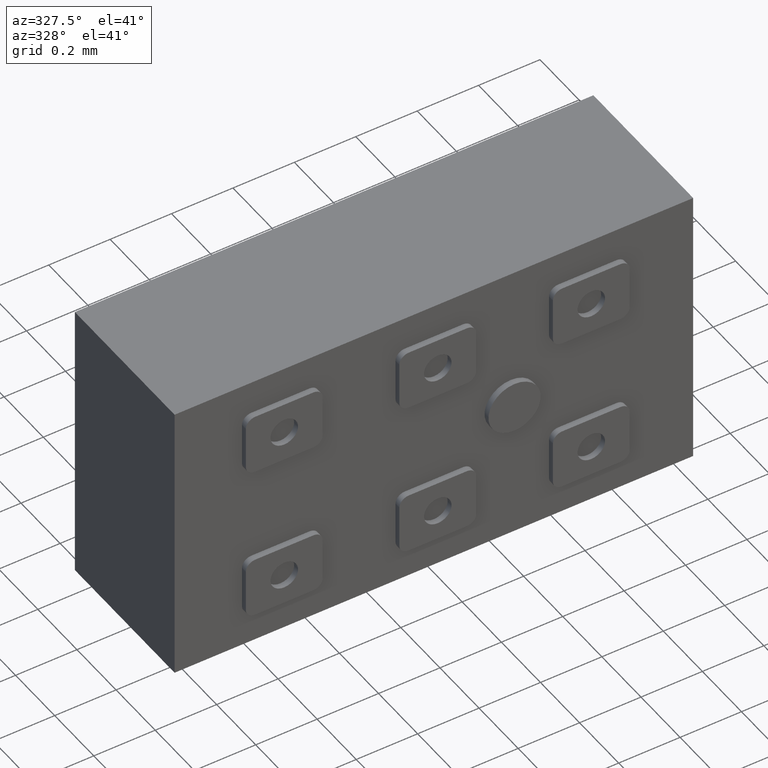
[diagram: clean part render]
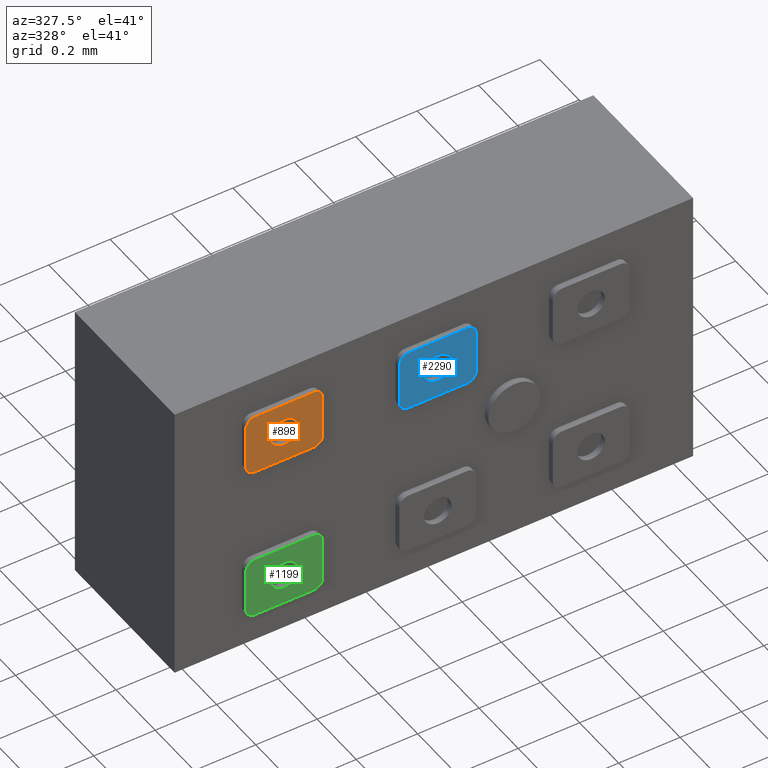
[diagram: same view with three faces highlighted in distinct colors, each labeled with its STEP entity id]
A machine part, auxiliary view with three faces highlighted in distinct colors.
Their STEP definitions:

[orange] entity #898 — the highlighted planar face has unit normal (0, 1, 0).
#12 = CARTESIAN_POINT ( 'NONE',  ( -0.5000000000000000000, -0.2750000000000000222, 0.2150000000000070466 ) ) ;
#91 = EDGE_CURVE ( 'NONE', #816, #2107, #853, .T. ) ;
#155 = CARTESIAN_POINT ( 'NONE',  ( -0.6250000000000000000, -0.2750000000000000222, 0.1900000000000070521 ) ) ;
#188 = AXIS2_PLACEMENT_3D ( 'NONE', #2552, #769, #576 ) ;
#214 = CARTESIAN_POINT ( 'NONE',  ( -0.5950000000000000844, -0.2750000000000000222, 0.1900000000000070521 ) ) ;
#254 = EDGE_CURVE ( 'NONE', #686, #1335, #1899, .T. ) ;
#278 = DIRECTION ( 'NONE',  ( 0.000000000000000000, 0.000000000000000000, 1.000000000000000000 ) ) ;
#379 = PLANE ( 'NONE',  #659 ) ;
#429 = ORIENTED_EDGE ( 'NONE', *, *, #2203, .F. ) ;
#539 = DIRECTION ( 'NONE',  ( -1.000000000000000000, -0.000000000000000000, -0.000000000000000000 ) ) ;
#576 = DIRECTION ( 'NONE',  ( 0.000000000000000000, 0.000000000000000000, 1.000000000000000000 ) ) ;
#603 = CARTESIAN_POINT ( 'NONE',  ( -0.3749999999999999445, -0.2750000000000000222, 0.1900000000000070521 ) ) ;
#605 = CIRCLE ( 'NONE', #188, 0.03000000000000002318 ) ;
#634 = DIRECTION ( 'NONE',  ( 1.000000000000000000, 0.000000000000000000, 0.000000000000000000 ) ) ;
#659 = AXIS2_PLACEMENT_3D ( 'NONE', #214, #1189, #1606 ) ;
#668 = ORIENTED_EDGE ( 'NONE', *, *, #1673, .T. ) ;
#669 = DIRECTION ( 'NONE',  ( 0.000000000000000000, 0.000000000000000000, 1.000000000000000000 ) ) ;
#677 = EDGE_CURVE ( 'NONE', #1134, #2163, #1078, .T. ) ;
#686 = VERTEX_POINT ( 'NONE', #1866 ) ;
#725 = EDGE_LOOP ( 'NONE', ( #970, #2348, #1556, #879, #2561, #429, #758, #1016 ) ) ;
#750 = EDGE_LOOP ( 'NONE', ( #2515, #668 ) ) ;
#758 = ORIENTED_EDGE ( 'NONE', *, *, #2131, .F. ) ;
#769 = DIRECTION ( 'NONE',  ( 0.000000000000000000, 1.000000000000000000, 0.000000000000000000 ) ) ;
#816 = VERTEX_POINT ( 'NONE', #933 ) ;
#822 = AXIS2_PLACEMENT_3D ( 'NONE', #1661, #2035, #1465 ) ;
#824 = LINE ( 'NONE', #1624, #1080 ) ;
#842 = CARTESIAN_POINT ( 'NONE',  ( -0.3749999999999998890, -0.2750000000000000222, 0.1900000000000070521 ) ) ;
#853 = LINE ( 'NONE', #842, #873 ) ;
#873 = VECTOR ( 'NONE', #2082, 1000.000000000000000 ) ;
#879 = ORIENTED_EDGE ( 'NONE', *, *, #91, .F. ) ;
#898 = ADVANCED_FACE ( 'NONE', ( #1983, #2194 ), #379, .F. ) ;
#917 = VERTEX_POINT ( 'NONE', #1794 ) ;
#933 = CARTESIAN_POINT ( 'NONE',  ( -0.3749999999999998890, -0.2750000000000000222, 0.3300000000000071210 ) ) ;
#970 = ORIENTED_EDGE ( 'NONE', *, *, #1496, .F. ) ;
#1016 = ORIENTED_EDGE ( 'NONE', *, *, #677, .F. ) ;
#1018 = DIRECTION ( 'NONE',  ( 0.000000000000000000, 1.000000000000000000, 0.000000000000000000 ) ) ;
#1048 = CARTESIAN_POINT ( 'NONE',  ( -0.5950000000000000844, -0.2750000000000000222, 0.1900000000000070521 ) ) ;
#1067 = CARTESIAN_POINT ( 'NONE',  ( -0.6250000000000000000, -0.2750000000000000222, 0.1900000000000070521 ) ) ;
#1078 = LINE ( 'NONE', #1067, #1746 ) ;
#1080 = VECTOR ( 'NONE', #634, 1000.000000000000000 ) ;
#1134 = VERTEX_POINT ( 'NONE', #155 ) ;
#1148 = AXIS2_PLACEMENT_3D ( 'NONE', #1512, #1782, #2554 ) ;
#1153 = DIRECTION ( 'NONE',  ( 0.000000000000000000, 1.000000000000000000, 0.000000000000000000 ) ) ;
#1189 = DIRECTION ( 'NONE',  ( 0.000000000000000000, 1.000000000000000000, 0.000000000000000000 ) ) ;
#1279 = AXIS2_PLACEMENT_3D ( 'NONE', #1048, #1647, #669 ) ;
#1305 = CARTESIAN_POINT ( 'NONE',  ( -0.5950000000000000844, -0.2750000000000000222, 0.1600000000000070810 ) ) ;
#1335 = VERTEX_POINT ( 'NONE', #1791 ) ;
#1345 = VERTEX_POINT ( 'NONE', #12 ) ;
#1370 = CARTESIAN_POINT ( 'NONE',  ( -0.4049999999999999711, -0.2750000000000000222, 0.3600000000000071476 ) ) ;
#1378 = DIRECTION ( 'NONE',  ( 0.000000000000000000, 0.000000000000000000, 1.000000000000000000 ) ) ;
#1381 = CARTESIAN_POINT ( 'NONE',  ( -0.5000000000000000000, -0.2750000000000000222, 0.2600000000000070033 ) ) ;
#1401 = EDGE_CURVE ( 'NONE', #1646, #816, #2565, .T. ) ;
#1465 = DIRECTION ( 'NONE',  ( 0.000000000000000000, 0.000000000000000000, -1.000000000000000000 ) ) ;
#1496 = EDGE_CURVE ( 'NONE', #1335, #1134, #2275, .T. ) ;
#1512 = CARTESIAN_POINT ( 'NONE',  ( -0.5000000000000000000, -0.2750000000000000222, 0.2600000000000070033 ) ) ;
#1556 = ORIENTED_EDGE ( 'NONE', *, *, #2506, .F. ) ;
#1579 = EDGE_CURVE ( 'NONE', #917, #1345, #1730, .T. ) ;
#1592 = CARTESIAN_POINT ( 'NONE',  ( -0.6250000000000000000, -0.2750000000000000222, 0.3300000000000071210 ) ) ;
#1606 = DIRECTION ( 'NONE',  ( 0.000000000000000000, -0.000000000000000000, 1.000000000000000000 ) ) ;
#1624 = CARTESIAN_POINT ( 'NONE',  ( -0.5950000000000000844, -0.2750000000000000222, 0.3600000000000070921 ) ) ;
#1646 = VERTEX_POINT ( 'NONE', #1370 ) ;
#1647 = DIRECTION ( 'NONE',  ( 0.000000000000000000, 1.000000000000000000, 0.000000000000000000 ) ) ;
#1661 = CARTESIAN_POINT ( 'NONE',  ( -0.4049999999999999711, -0.2750000000000000222, 0.3300000000000071210 ) ) ;
#1673 = EDGE_CURVE ( 'NONE', #1345, #917, #1982, .T. ) ;
#1730 = CIRCLE ( 'NONE', #1148, 0.04500000000000001221 ) ;
#1746 = VECTOR ( 'NONE', #278, 1000.000000000000000 ) ;
#1782 = DIRECTION ( 'NONE',  ( 0.000000000000000000, 1.000000000000000000, 0.000000000000000000 ) ) ;
#1787 = CIRCLE ( 'NONE', #1833, 0.02999999999999997113 ) ;
#1791 = CARTESIAN_POINT ( 'NONE',  ( -0.5950000000000000844, -0.2750000000000000222, 0.1600000000000070810 ) ) ;
#1794 = CARTESIAN_POINT ( 'NONE',  ( -0.5000000000000000000, -0.2750000000000000222, 0.3050000000000070433 ) ) ;
#1833 = AXIS2_PLACEMENT_3D ( 'NONE', #2371, #1018, #1378 ) ;
#1866 = CARTESIAN_POINT ( 'NONE',  ( -0.4049999999999999711, -0.2750000000000000222, 0.1600000000000070810 ) ) ;
#1899 = LINE ( 'NONE', #1305, #2083 ) ;
#1982 = CIRCLE ( 'NONE', #2310, 0.04500000000000001221 ) ;
#1983 = FACE_BOUND ( 'NONE', #750, .T. ) ;
#2035 = DIRECTION ( 'NONE',  ( 0.000000000000000000, 1.000000000000000000, -0.000000000000000000 ) ) ;
#2082 = DIRECTION ( 'NONE',  ( -0.000000000000000000, -0.000000000000000000, -1.000000000000000000 ) ) ;
#2083 = VECTOR ( 'NONE', #539, 1000.000000000000000 ) ;
#2107 = VERTEX_POINT ( 'NONE', #603 ) ;
#2131 = EDGE_CURVE ( 'NONE', #2163, #2204, #1787, .T. ) ;
#2163 = VERTEX_POINT ( 'NONE', #1592 ) ;
#2194 = FACE_OUTER_BOUND ( 'NONE', #725, .T. ) ;
#2203 = EDGE_CURVE ( 'NONE', #2204, #1646, #824, .T. ) ;
#2204 = VERTEX_POINT ( 'NONE', #2429 ) ;
#2275 = CIRCLE ( 'NONE', #1279, 0.02999999999999997113 ) ;
#2310 = AXIS2_PLACEMENT_3D ( 'NONE', #1381, #1153, #2512 ) ;
#2348 = ORIENTED_EDGE ( 'NONE', *, *, #254, .F. ) ;
#2371 = CARTESIAN_POINT ( 'NONE',  ( -0.5950000000000000844, -0.2750000000000000222, 0.3300000000000071210 ) ) ;
#2429 = CARTESIAN_POINT ( 'NONE',  ( -0.5950000000000000844, -0.2750000000000000222, 0.3600000000000070921 ) ) ;
#2506 = EDGE_CURVE ( 'NONE', #2107, #686, #605, .T. ) ;
#2512 = DIRECTION ( 'NONE',  ( 0.000000000000000000, 0.000000000000000000, 1.000000000000000000 ) ) ;
#2515 = ORIENTED_EDGE ( 'NONE', *, *, #1579, .T. ) ;
#2552 = CARTESIAN_POINT ( 'NONE',  ( -0.4049999999999999711, -0.2750000000000000222, 0.1900000000000070521 ) ) ;
#2554 = DIRECTION ( 'NONE',  ( 0.000000000000000000, 0.000000000000000000, 1.000000000000000000 ) ) ;
#2561 = ORIENTED_EDGE ( 'NONE', *, *, #1401, .F. ) ;
#2565 = CIRCLE ( 'NONE', #822, 0.03000000000000002318 ) ;

[blue] entity #2290 — the highlighted planar face has unit normal (0, 1, 0).
#7 = EDGE_LOOP ( 'NONE', ( #1238, #1706 ) ) ;
#81 = VECTOR ( 'NONE', #1778, 1000.000000000000000 ) ;
#114 = AXIS2_PLACEMENT_3D ( 'NONE', #328, #124, #1898 ) ;
#124 = DIRECTION ( 'NONE',  ( 0.000000000000000000, 1.000000000000000000, 0.000000000000000000 ) ) ;
#144 = LINE ( 'NONE', #1752, #2158 ) ;
#172 = DIRECTION ( 'NONE',  ( -0.000000000000000000, -0.000000000000000000, -1.000000000000000000 ) ) ;
#197 = VECTOR ( 'NONE', #1095, 1000.000000000000000 ) ;
#202 = DIRECTION ( 'NONE',  ( 0.000000000000000000, 1.000000000000000000, 0.000000000000000000 ) ) ;
#203 = AXIS2_PLACEMENT_3D ( 'NONE', #288, #1885, #1301 ) ;
#206 = VERTEX_POINT ( 'NONE', #2322 ) ;
#229 = CARTESIAN_POINT ( 'NONE',  ( -0.09500000000000002887, -0.2750000000000000222, 0.1600000000000035560 ) ) ;
#239 = CARTESIAN_POINT ( 'NONE',  ( 0.000000000000000000, -0.2750000000000000222, 0.2600000000000035061 ) ) ;
#244 = ORIENTED_EDGE ( 'NONE', *, *, #1555, .F. ) ;
#248 = CIRCLE ( 'NONE', #1882, 0.02999999999999997113 ) ;
#253 = ORIENTED_EDGE ( 'NONE', *, *, #1085, .F. ) ;
#288 = CARTESIAN_POINT ( 'NONE',  ( 0.000000000000000000, -0.2750000000000000222, 0.2600000000000035061 ) ) ;
#290 = LINE ( 'NONE', #1468, #323 ) ;
#323 = VECTOR ( 'NONE', #172, 1000.000000000000000 ) ;
#328 = CARTESIAN_POINT ( 'NONE',  ( 0.09500000000000002887, -0.2750000000000000222, 0.1900000000000035272 ) ) ;
#336 = VERTEX_POINT ( 'NONE', #1356 ) ;
#393 = CARTESIAN_POINT ( 'NONE',  ( -0.09500000000000002887, -0.2750000000000000222, 0.1900000000000035272 ) ) ;
#436 = CARTESIAN_POINT ( 'NONE',  ( 0.09500000000000002887, -0.2750000000000000222, 0.3300000000000035683 ) ) ;
#449 = EDGE_CURVE ( 'NONE', #1807, #1572, #248, .T. ) ;
#460 = EDGE_CURVE ( 'NONE', #679, #843, #1287, .T. ) ;
#478 = EDGE_CURVE ( 'NONE', #2501, #700, #2457, .T. ) ;
#484 = FACE_BOUND ( 'NONE', #7, .T. ) ;
#504 = ORIENTED_EDGE ( 'NONE', *, *, #478, .F. ) ;
#583 = VERTEX_POINT ( 'NONE', #1292 ) ;
#621 = DIRECTION ( 'NONE',  ( 0.000000000000000000, 0.000000000000000000, 1.000000000000000000 ) ) ;
#642 = ORIENTED_EDGE ( 'NONE', *, *, #687, .F. ) ;
#646 = CARTESIAN_POINT ( 'NONE',  ( -0.09500000000000002887, -0.2750000000000000222, 0.3300000000000035683 ) ) ;
#679 = VERTEX_POINT ( 'NONE', #2078 ) ;
#687 = EDGE_CURVE ( 'NONE', #843, #206, #290, .T. ) ;
#700 = VERTEX_POINT ( 'NONE', #2495 ) ;
#843 = VERTEX_POINT ( 'NONE', #2522 ) ;
#867 = AXIS2_PLACEMENT_3D ( 'NONE', #1280, #2279, #2075 ) ;
#888 = CARTESIAN_POINT ( 'NONE',  ( -0.09500000000000002887, -0.2750000000000000222, 0.1600000000000035560 ) ) ;
#944 = ORIENTED_EDGE ( 'NONE', *, *, #1979, .F. ) ;
#949 = EDGE_CURVE ( 'NONE', #1572, #2501, #2566, .T. ) ;
#996 = DIRECTION ( 'NONE',  ( 0.000000000000000000, 0.000000000000000000, 1.000000000000000000 ) ) ;
#1039 = DIRECTION ( 'NONE',  ( 0.000000000000000000, 1.000000000000000000, 0.000000000000000000 ) ) ;
#1077 = PLANE ( 'NONE',  #867 ) ;
#1085 = EDGE_CURVE ( 'NONE', #336, #1807, #2278, .T. ) ;
#1095 = DIRECTION ( 'NONE',  ( -1.000000000000000000, -0.000000000000000000, -0.000000000000000000 ) ) ;
#1182 = ORIENTED_EDGE ( 'NONE', *, *, #460, .F. ) ;
#1219 = CARTESIAN_POINT ( 'NONE',  ( -0.1250000000000000000, -0.2750000000000000222, 0.1900000000000035272 ) ) ;
#1238 = ORIENTED_EDGE ( 'NONE', *, *, #1764, .T. ) ;
#1240 = CIRCLE ( 'NONE', #114, 0.03000000000000002318 ) ;
#1244 = DIRECTION ( 'NONE',  ( 0.000000000000000000, 1.000000000000000000, -0.000000000000000000 ) ) ;
#1245 = CIRCLE ( 'NONE', #203, 0.04500000000000001221 ) ;
#1268 = FACE_OUTER_BOUND ( 'NONE', #2285, .T. ) ;
#1280 = CARTESIAN_POINT ( 'NONE',  ( -0.09500000000000002887, -0.2750000000000000222, 0.1900000000000035272 ) ) ;
#1287 = CIRCLE ( 'NONE', #1534, 0.03000000000000002318 ) ;
#1292 = CARTESIAN_POINT ( 'NONE',  ( 0.000000000000000000, -0.2750000000000000222, 0.3050000000000034905 ) ) ;
#1301 = DIRECTION ( 'NONE',  ( 0.000000000000000000, 0.000000000000000000, 1.000000000000000000 ) ) ;
#1308 = ORIENTED_EDGE ( 'NONE', *, *, #449, .F. ) ;
#1356 = CARTESIAN_POINT ( 'NONE',  ( 0.09500000000000002887, -0.2750000000000000222, 0.1600000000000035560 ) ) ;
#1468 = CARTESIAN_POINT ( 'NONE',  ( 0.1250000000000001110, -0.2750000000000000222, 0.1900000000000035272 ) ) ;
#1523 = CARTESIAN_POINT ( 'NONE',  ( -0.1250000000000000000, -0.2750000000000000222, 0.3300000000000035683 ) ) ;
#1534 = AXIS2_PLACEMENT_3D ( 'NONE', #436, #1244, #1823 ) ;
#1555 = EDGE_CURVE ( 'NONE', #206, #336, #1240, .T. ) ;
#1572 = VERTEX_POINT ( 'NONE', #1714 ) ;
#1629 = AXIS2_PLACEMENT_3D ( 'NONE', #646, #1039, #621 ) ;
#1656 = AXIS2_PLACEMENT_3D ( 'NONE', #239, #202, #996 ) ;
#1706 = ORIENTED_EDGE ( 'NONE', *, *, #2297, .T. ) ;
#1714 = CARTESIAN_POINT ( 'NONE',  ( -0.1250000000000000000, -0.2750000000000000222, 0.1900000000000035272 ) ) ;
#1752 = CARTESIAN_POINT ( 'NONE',  ( -0.09500000000000002887, -0.2750000000000000222, 0.3600000000000035394 ) ) ;
#1764 = EDGE_CURVE ( 'NONE', #583, #1990, #2397, .T. ) ;
#1778 = DIRECTION ( 'NONE',  ( 0.000000000000000000, 0.000000000000000000, 1.000000000000000000 ) ) ;
#1807 = VERTEX_POINT ( 'NONE', #229 ) ;
#1814 = ORIENTED_EDGE ( 'NONE', *, *, #949, .F. ) ;
#1823 = DIRECTION ( 'NONE',  ( 0.000000000000000000, 0.000000000000000000, -1.000000000000000000 ) ) ;
#1882 = AXIS2_PLACEMENT_3D ( 'NONE', #393, #2003, #2225 ) ;
#1885 = DIRECTION ( 'NONE',  ( 0.000000000000000000, 1.000000000000000000, 0.000000000000000000 ) ) ;
#1898 = DIRECTION ( 'NONE',  ( 0.000000000000000000, 0.000000000000000000, 1.000000000000000000 ) ) ;
#1979 = EDGE_CURVE ( 'NONE', #700, #679, #144, .T. ) ;
#1990 = VERTEX_POINT ( 'NONE', #2170 ) ;
#2003 = DIRECTION ( 'NONE',  ( 0.000000000000000000, 1.000000000000000000, 0.000000000000000000 ) ) ;
#2075 = DIRECTION ( 'NONE',  ( 0.000000000000000000, -0.000000000000000000, 1.000000000000000000 ) ) ;
#2078 = CARTESIAN_POINT ( 'NONE',  ( 0.09500000000000002887, -0.2750000000000000222, 0.3600000000000035949 ) ) ;
#2128 = DIRECTION ( 'NONE',  ( 1.000000000000000000, 0.000000000000000000, 0.000000000000000000 ) ) ;
#2158 = VECTOR ( 'NONE', #2128, 1000.000000000000000 ) ;
#2170 = CARTESIAN_POINT ( 'NONE',  ( 5.510910596163088785E-18, -0.2750000000000000222, 0.2150000000000035216 ) ) ;
#2225 = DIRECTION ( 'NONE',  ( 0.000000000000000000, 0.000000000000000000, 1.000000000000000000 ) ) ;
#2278 = LINE ( 'NONE', #888, #197 ) ;
#2279 = DIRECTION ( 'NONE',  ( 0.000000000000000000, 1.000000000000000000, 0.000000000000000000 ) ) ;
#2285 = EDGE_LOOP ( 'NONE', ( #1308, #253, #244, #642, #1182, #944, #504, #1814 ) ) ;
#2290 = ADVANCED_FACE ( 'NONE', ( #484, #1268 ), #1077, .F. ) ;
#2297 = EDGE_CURVE ( 'NONE', #1990, #583, #1245, .T. ) ;
#2322 = CARTESIAN_POINT ( 'NONE',  ( 0.1250000000000000555, -0.2750000000000000222, 0.1900000000000035272 ) ) ;
#2397 = CIRCLE ( 'NONE', #1656, 0.04500000000000001221 ) ;
#2457 = CIRCLE ( 'NONE', #1629, 0.02999999999999997113 ) ;
#2495 = CARTESIAN_POINT ( 'NONE',  ( -0.09500000000000002887, -0.2750000000000000222, 0.3600000000000035394 ) ) ;
#2501 = VERTEX_POINT ( 'NONE', #1523 ) ;
#2522 = CARTESIAN_POINT ( 'NONE',  ( 0.1250000000000001110, -0.2750000000000000222, 0.3300000000000035683 ) ) ;
#2566 = LINE ( 'NONE', #1219, #81 ) ;

[green] entity #1199 — the highlighted planar face has unit normal (0, 1, 0).
#3 = CARTESIAN_POINT ( 'NONE',  ( -0.3749999999999998890, -0.2750000000000000222, -0.3299999999999930766 ) ) ;
#4 = CARTESIAN_POINT ( 'NONE',  ( -0.5000000000000000000, -0.2750000000000000222, -0.3049999999999929434 ) ) ;
#85 = AXIS2_PLACEMENT_3D ( 'NONE', #755, #560, #2355 ) ;
#126 = AXIS2_PLACEMENT_3D ( 'NONE', #313, #148, #1116 ) ;
#128 = VERTEX_POINT ( 'NONE', #1093 ) ;
#148 = DIRECTION ( 'NONE',  ( 0.000000000000000000, 1.000000000000000000, 0.000000000000000000 ) ) ;
#160 = VERTEX_POINT ( 'NONE', #1643 ) ;
#166 = ORIENTED_EDGE ( 'NONE', *, *, #2054, .T. ) ;
#173 = DIRECTION ( 'NONE',  ( 0.000000000000000000, 1.000000000000000000, 0.000000000000000000 ) ) ;
#196 = CARTESIAN_POINT ( 'NONE',  ( -0.3749999999999998890, -0.2750000000000000222, -0.1899999999999930078 ) ) ;
#211 = EDGE_CURVE ( 'NONE', #1482, #333, #2253, .T. ) ;
#227 = CARTESIAN_POINT ( 'NONE',  ( -0.4049999999999999711, -0.2750000000000000222, -0.3599999999999930478 ) ) ;
#241 = ORIENTED_EDGE ( 'NONE', *, *, #211, .T. ) ;
#313 = CARTESIAN_POINT ( 'NONE',  ( -0.5000000000000000000, -0.2750000000000000222, -0.2599999999999930700 ) ) ;
#333 = VERTEX_POINT ( 'NONE', #4 ) ;
#342 = ORIENTED_EDGE ( 'NONE', *, *, #1584, .F. ) ;
#345 = CARTESIAN_POINT ( 'NONE',  ( -0.5950000000000000844, -0.2750000000000000222, -0.3299999999999930766 ) ) ;
#350 = DIRECTION ( 'NONE',  ( 0.000000000000000000, 0.000000000000000000, 1.000000000000000000 ) ) ;
#406 = DIRECTION ( 'NONE',  ( 0.000000000000000000, 0.000000000000000000, 1.000000000000000000 ) ) ;
#412 = AXIS2_PLACEMENT_3D ( 'NONE', #2260, #2464, #488 ) ;
#452 = AXIS2_PLACEMENT_3D ( 'NONE', #2458, #675, #1509 ) ;
#488 = DIRECTION ( 'NONE',  ( 0.000000000000000000, 0.000000000000000000, 1.000000000000000000 ) ) ;
#519 = CARTESIAN_POINT ( 'NONE',  ( -0.5950000000000000844, -0.2750000000000000222, -0.3599999999999930478 ) ) ;
#531 = CIRCLE ( 'NONE', #85, 0.03000000000000002318 ) ;
#560 = DIRECTION ( 'NONE',  ( 0.000000000000000000, 1.000000000000000000, -0.000000000000000000 ) ) ;
#580 = DIRECTION ( 'NONE',  ( -0.000000000000000000, -0.000000000000000000, -1.000000000000000000 ) ) ;
#601 = ORIENTED_EDGE ( 'NONE', *, *, #2383, .F. ) ;
#622 = CIRCLE ( 'NONE', #452, 0.02999999999999997113 ) ;
#630 = ORIENTED_EDGE ( 'NONE', *, *, #663, .F. ) ;
#663 = EDGE_CURVE ( 'NONE', #912, #2289, #1839, .T. ) ;
#675 = DIRECTION ( 'NONE',  ( 0.000000000000000000, 1.000000000000000000, 0.000000000000000000 ) ) ;
#731 = LINE ( 'NONE', #1330, #1788 ) ;
#755 = CARTESIAN_POINT ( 'NONE',  ( -0.4049999999999999711, -0.2750000000000000222, -0.1899999999999930078 ) ) ;
#857 = EDGE_CURVE ( 'NONE', #160, #1320, #531, .T. ) ;
#910 = CARTESIAN_POINT ( 'NONE',  ( -0.5000000000000000000, -0.2750000000000000222, -0.2149999999999932243 ) ) ;
#912 = VERTEX_POINT ( 'NONE', #990 ) ;
#913 = EDGE_CURVE ( 'NONE', #960, #2200, #1311, .T. ) ;
#929 = DIRECTION ( 'NONE',  ( 0.000000000000000000, 1.000000000000000000, 0.000000000000000000 ) ) ;
#930 = ORIENTED_EDGE ( 'NONE', *, *, #1939, .F. ) ;
#960 = VERTEX_POINT ( 'NONE', #1232 ) ;
#969 = ORIENTED_EDGE ( 'NONE', *, *, #913, .F. ) ;
#976 = DIRECTION ( 'NONE',  ( 0.000000000000000000, 1.000000000000000000, 0.000000000000000000 ) ) ;
#978 = VERTEX_POINT ( 'NONE', #1637 ) ;
#990 = CARTESIAN_POINT ( 'NONE',  ( -0.5950000000000000844, -0.2750000000000000222, -0.3599999999999930478 ) ) ;
#1027 = AXIS2_PLACEMENT_3D ( 'NONE', #345, #929, #2095 ) ;
#1093 = CARTESIAN_POINT ( 'NONE',  ( -0.6250000000000000000, -0.2750000000000000222, -0.1899999999999930078 ) ) ;
#1116 = DIRECTION ( 'NONE',  ( 0.000000000000000000, 0.000000000000000000, 1.000000000000000000 ) ) ;
#1128 = LINE ( 'NONE', #3, #1941 ) ;
#1150 = DIRECTION ( 'NONE',  ( 1.000000000000000000, 0.000000000000000000, 0.000000000000000000 ) ) ;
#1152 = AXIS2_PLACEMENT_3D ( 'NONE', #1809, #976, #406 ) ;
#1199 = ADVANCED_FACE ( 'NONE', ( #1931, #1337 ), #1546, .F. ) ;
#1232 = CARTESIAN_POINT ( 'NONE',  ( -0.3749999999999999445, -0.2750000000000000222, -0.3299999999999930766 ) ) ;
#1311 = CIRCLE ( 'NONE', #1152, 0.03000000000000002318 ) ;
#1320 = VERTEX_POINT ( 'NONE', #196 ) ;
#1330 = CARTESIAN_POINT ( 'NONE',  ( -0.6250000000000000000, -0.2750000000000000222, -0.3299999999999930766 ) ) ;
#1337 = FACE_OUTER_BOUND ( 'NONE', #1777, .T. ) ;
#1340 = LINE ( 'NONE', #1737, #2113 ) ;
#1341 = LINE ( 'NONE', #519, #2392 ) ;
#1451 = CARTESIAN_POINT ( 'NONE',  ( -0.6250000000000000000, -0.2750000000000000222, -0.3299999999999930766 ) ) ;
#1482 = VERTEX_POINT ( 'NONE', #910 ) ;
#1509 = DIRECTION ( 'NONE',  ( 0.000000000000000000, 0.000000000000000000, 1.000000000000000000 ) ) ;
#1546 = PLANE ( 'NONE',  #1027 ) ;
#1584 = EDGE_CURVE ( 'NONE', #1320, #960, #1128, .T. ) ;
#1637 = CARTESIAN_POINT ( 'NONE',  ( -0.5950000000000000844, -0.2750000000000000222, -0.1599999999999930367 ) ) ;
#1643 = CARTESIAN_POINT ( 'NONE',  ( -0.4049999999999999711, -0.2750000000000000222, -0.1599999999999929812 ) ) ;
#1737 = CARTESIAN_POINT ( 'NONE',  ( -0.5950000000000000844, -0.2750000000000000222, -0.1599999999999930367 ) ) ;
#1777 = EDGE_LOOP ( 'NONE', ( #630, #2424, #969, #342, #2532, #2060, #930, #601 ) ) ;
#1788 = VECTOR ( 'NONE', #350, 1000.000000000000000 ) ;
#1809 = CARTESIAN_POINT ( 'NONE',  ( -0.4049999999999999711, -0.2750000000000000222, -0.3299999999999930766 ) ) ;
#1839 = CIRCLE ( 'NONE', #412, 0.02999999999999997113 ) ;
#1931 = FACE_BOUND ( 'NONE', #2558, .T. ) ;
#1939 = EDGE_CURVE ( 'NONE', #128, #978, #622, .T. ) ;
#1941 = VECTOR ( 'NONE', #580, 1000.000000000000000 ) ;
#1961 = CARTESIAN_POINT ( 'NONE',  ( -0.5000000000000000000, -0.2750000000000000222, -0.2599999999999930700 ) ) ;
#2014 = EDGE_CURVE ( 'NONE', #978, #160, #1340, .T. ) ;
#2054 = EDGE_CURVE ( 'NONE', #333, #1482, #2319, .T. ) ;
#2060 = ORIENTED_EDGE ( 'NONE', *, *, #2014, .F. ) ;
#2095 = DIRECTION ( 'NONE',  ( 0.000000000000000000, -0.000000000000000000, 1.000000000000000000 ) ) ;
#2113 = VECTOR ( 'NONE', #1150, 1000.000000000000000 ) ;
#2200 = VERTEX_POINT ( 'NONE', #227 ) ;
#2253 = CIRCLE ( 'NONE', #126, 0.04499999999999987343 ) ;
#2260 = CARTESIAN_POINT ( 'NONE',  ( -0.5950000000000000844, -0.2750000000000000222, -0.3299999999999930766 ) ) ;
#2289 = VERTEX_POINT ( 'NONE', #1451 ) ;
#2319 = CIRCLE ( 'NONE', #2408, 0.04499999999999987343 ) ;
#2355 = DIRECTION ( 'NONE',  ( 0.000000000000000000, 0.000000000000000000, -1.000000000000000000 ) ) ;
#2383 = EDGE_CURVE ( 'NONE', #2289, #128, #731, .T. ) ;
#2392 = VECTOR ( 'NONE', #2511, 1000.000000000000000 ) ;
#2408 = AXIS2_PLACEMENT_3D ( 'NONE', #1961, #173, #2551 ) ;
#2424 = ORIENTED_EDGE ( 'NONE', *, *, #2498, .F. ) ;
#2458 = CARTESIAN_POINT ( 'NONE',  ( -0.5950000000000000844, -0.2750000000000000222, -0.1899999999999930078 ) ) ;
#2464 = DIRECTION ( 'NONE',  ( 0.000000000000000000, 1.000000000000000000, 0.000000000000000000 ) ) ;
#2498 = EDGE_CURVE ( 'NONE', #2200, #912, #1341, .T. ) ;
#2511 = DIRECTION ( 'NONE',  ( -1.000000000000000000, -0.000000000000000000, -0.000000000000000000 ) ) ;
#2532 = ORIENTED_EDGE ( 'NONE', *, *, #857, .F. ) ;
#2551 = DIRECTION ( 'NONE',  ( 0.000000000000000000, 0.000000000000000000, 1.000000000000000000 ) ) ;
#2558 = EDGE_LOOP ( 'NONE', ( #241, #166 ) ) ;